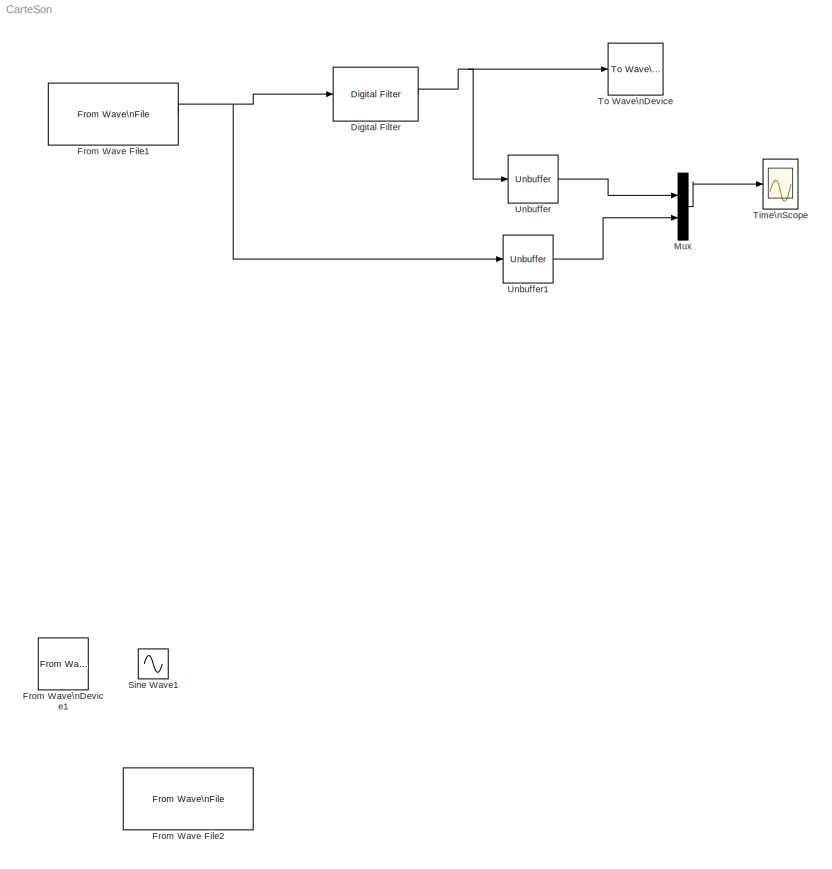
MODEL CarteSon
KIND model
BLOCK [Reference] Digital Filter  REF=dsparch4/Digital Filter
  AllPoleFiltStruct = Direct form
  BiQuadCoeffs = [1 0.3 0.4 1 0.1 0.2]
  CoeffSource = Specify via dialog
  DenCoeffs = DenD
  DialogController = dspdialog.DigitalFilter
  DialogControllerArgs = DataTag0
  FIRFiltStruct = Direct form
  FiltPerSampPopup = One filter per frame
  FilterSource = Specify via dialog
  IC = 0
  ICden = 0
  ICnum = 0
  IIRFiltStruct = Direct form I
  LatticeCoeffs = [0.2 0.4]
  LockScale = off
  NumCoeffs = NumD
  Ports = [1, 1]
  ScaleValues = 1
  SourceBlock = dsparch4/Digital Filter
  SourceType = Digital Filter
  TypePopup = IIR (poles & zeros)
  accumFracLength = 30
  accumMode = Same as product output
  accumWordLength = 32
  additionalParams = off
  allowOverrides = on
  denIgnore = on
  dfiltObjectName = dfilt.dffir([1 2 1])
  firstCoeffFracLength = 15
  firstCoeffMode = Same word length as input
  firstCoeffWordLength = 16
  memoryFracLength = 15
  memoryMode = Same as accumulator
  memoryWordLength = 16
  multiplicandFracLength = 30
  multiplicandMode = Same as output
  multiplicandWordLength = 32
  outputFracLength = 15
  outputMode = Same as accumulator
  outputWordLength = 16
  overflowMode = on
  prodOutputFracLength = 30
  prodOutputMode = Same as input
  prodOutputWordLength = 32
  roundingMode = Floor
  scaleValueFracLength = 14
  secondCoeffFracLength = 15
  secondCoeffMode = Same as numerator
  secondCoeffWordLength = 16
  showAcc = off
  showCoeff = off
  showMem = off
  showMpy = off
  showOut = off
  stageIOMode = Same as input
  stageIOWordLength = 16
  stageInFracLength = 15
  stageOutFracLength = 15
  tapSumFracLength = 30
  tapSumMode = Same as input
  tapSumWordLength = 32
  thirdCoeffFracLength = 15
  thirdCoeffMode = Same as input
  thirdCoeffWordLength = 16
BLOCK [Reference] From Wave File1  REF=dspwin32/From Wave\nFile
  FileName = Rokia03.wav
  MinBufSize = 256
  Ports = [0, 1]
  SamplesPerFrame = 256
  SourceBlock = dspwin32/From Wave\nFile
  SourceType = From Wave File
  bLoop = off
  dType = double
  firstSampleOutput = off
  lastSampleOutput = off
  restartMode = immediately after last sample
  timesToPlay = 1
BLOCK [Reference] From Wave File2  REF=dspwin32/From Wave\nFile
  FileName = Sinus600.wav
  MinBufSize = 256
  Ports = [0, 1]
  SamplesPerFrame = 256
  SourceBlock = dspwin32/From Wave\nFile
  SourceType = From Wave File
  bLoop = off
  dType = double
  firstSampleOutput = off
  lastSampleOutput = off
  restartMode = immediately after last sample
  timesToPlay = 1
BLOCK [Reference] From Wave\nDevice1  REF=dspwin32/From Wave\nDevice
  Ports = [0, 1]
  QueueDuration = 0.1
  SampleRate = User-defined
  SampleWidth = 16
  SamplesPerFrame = 64
  SourceBlock = dspwin32/From Wave\nDevice
  SourceType = From Wave Device
  Stereo = off
  UserRate = Fs
  dType = double
  useDefaultDevice = on
  userDeviceID = SoundMAX HD Audio
BLOCK [Mux] Mux
  DisplayOption = bar
  Inputs = 2
  Ports = [2, 1]
BLOCK [Sin] Sine Wave1
  Ports = [0, 1]
  SampleTime = 1/8000
  Samples = 83
  SineType = Sample based
BLOCK [Scope] Time\nScope
  DataFormat = Structure
  Floating = off
  LimitDataPoints = off
  MaxDataPoints = 50000
  NumInputPorts = 1
  Ports = [1]
  SampleTime = 0
  TimeRange = 0.02
  YMax = 0.4
  YMin = -0.25
BLOCK [Reference] To Wave\nDevice  REF=dspwin32/To Wave\nDevice
  Ports = [1]
  SourceBlock = dspwin32/To Wave\nDevice
  SourceType = To Wave Device
  bufDuration = 2
  determineBufSize = on
  enable24Bit = off
  initDelay = 0.1
  useDefaultDevice = on
  userDeviceID = SoundMAX HD Audio
  userIntBufSize = 256
BLOCK [Reference] Unbuffer  REF=dspbuff3/Unbuffer
  Ports = [1, 1]
  SourceBlock = dspbuff3/Unbuffer
  SourceType = Unbuffer
  ic = 0
BLOCK [Reference] Unbuffer1  REF=dspbuff3/Unbuffer
  Ports = [1, 1]
  SourceBlock = dspbuff3/Unbuffer
  SourceType = Unbuffer
  ic = 0
NET Digital Filter:1 -> To Wave\nDevice:1, Unbuffer:1
NET From Wave File1:1 -> Digital Filter:1, Unbuffer1:1
LINE Mux:1 -> Time\nScope:1
LINE Unbuffer1:1 -> Mux:2
LINE Unbuffer:1 -> Mux:1
note: NET lines group one-source signal fan-out (src -> all destinations, sorted); 1:1 wires keep LINE
